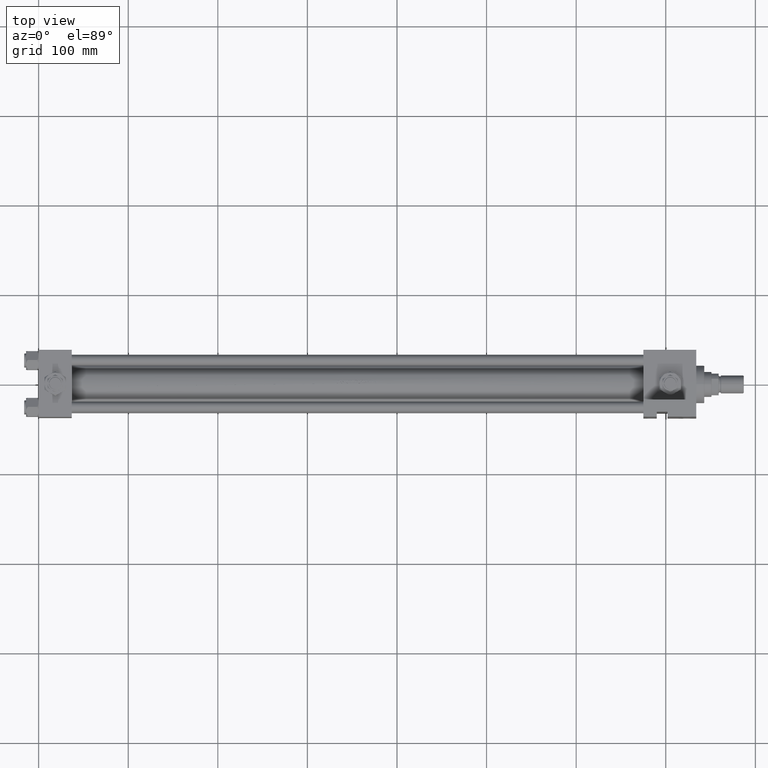
[diagram: clean part render]
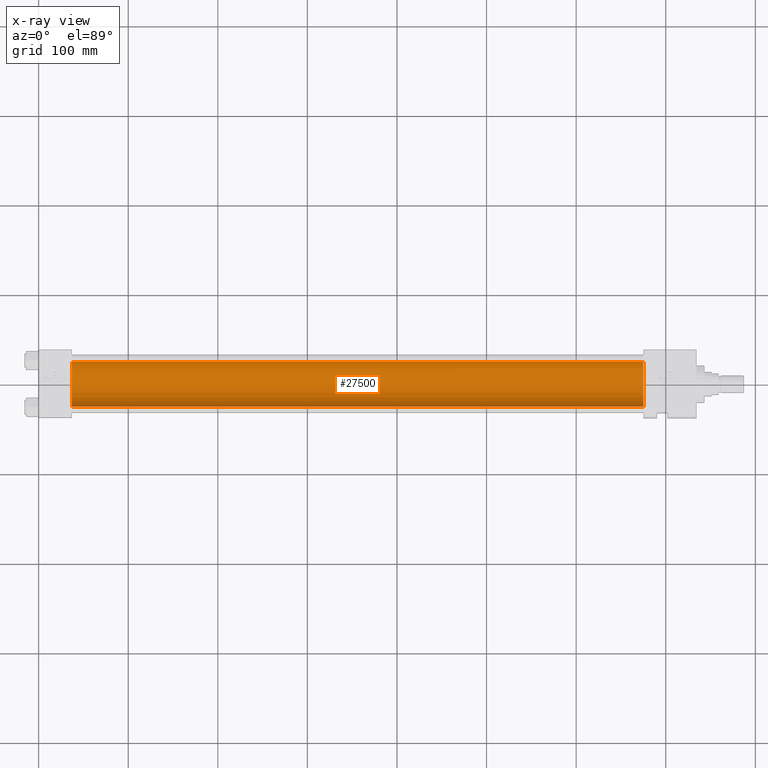
[diagram: x-ray — body ghosted, one internal face saturated and labeled with its STEP entity id]
A machine part, top view, then the same camera in x-ray: the body is ghosted and one INTERNAL B-rep face — a face not visible from any outside direction — is saturated and labeled: STEP entity #27500.
In plain terms, the highlighted cylindrical surface (edge-blend (fillet) strip) has radius 25 mm, axis along (-1, -0, 0).
Its self-contained STEP definition (entity closure, byte-faithful):
#1944 = CIRCLE ( 'NONE', #13288, 25.00000000000000000 ) ;
#3555 = CARTESIAN_POINT ( 'NONE',  ( 37.00000000000000000, 6.123233995736772199E-17, -0.5000000000000004441 ) ) ;
#3609 = EDGE_LOOP ( 'NONE', ( #20262, #24189, #48394, #37879 ) ) ;
#4236 = VERTEX_POINT ( 'NONE', #19249 ) ;
#4852 = DIRECTION ( 'NONE',  ( -1.000000000000000000, -0.000000000000000000, -0.000000000000000000 ) ) ;
#5935 = VECTOR ( 'NONE', #36182, 1000.000000000000000 ) ;
#6159 = VECTOR ( 'NONE', #11584, 1000.000000000000000 ) ;
#7550 = VERTEX_POINT ( 'NONE', #31599 ) ;
#9238 = CARTESIAN_POINT ( 'NONE',  ( 37.00000000000000000, 3.122849337825750617E-15, -25.50000000000000355 ) ) ;
#11584 = DIRECTION ( 'NONE',  ( -1.000000000000000000, -0.000000000000000000, -0.000000000000000000 ) ) ;
#11986 = CYLINDRICAL_SURFACE ( 'NONE', #13807, 25.00000000000000000 ) ;
#12750 = EDGE_CURVE ( 'NONE', #42997, #7550, #30835, .T. ) ;
#13288 = AXIS2_PLACEMENT_3D ( 'NONE', #3555, #42348, #38285 ) ;
#13807 = AXIS2_PLACEMENT_3D ( 'NONE', #24126, #4852, #16040 ) ;
#15846 = CARTESIAN_POINT ( 'NONE',  ( 675.0000000000000000, 6.123233995736772199E-17, 24.50000000000000000 ) ) ;
#16040 = DIRECTION ( 'NONE',  ( 0.000000000000000000, 0.000000000000000000, 1.000000000000000000 ) ) ;
#19249 = CARTESIAN_POINT ( 'NONE',  ( 675.0000000000000000, 3.122849337825750617E-15, -25.50000000000000355 ) ) ;
#20262 = ORIENTED_EDGE ( 'NONE', *, *, #33673, .F. ) ;
#23302 = VERTEX_POINT ( 'NONE', #9238 ) ;
#24106 = EDGE_CURVE ( 'NONE', #4236, #42997, #36489, .T. ) ;
#24126 = CARTESIAN_POINT ( 'NONE',  ( 675.0000000000000000, 6.123233995736772199E-17, -0.5000000000000004441 ) ) ;
#24189 = ORIENTED_EDGE ( 'NONE', *, *, #24106, .T. ) ;
#27071 = CARTESIAN_POINT ( 'NONE',  ( 675.0000000000000000, 6.123233995736772199E-17, -0.5000000000000004441 ) ) ;
#27500 = ADVANCED_FACE ( 'NONE', ( #43140 ), #11986, .F. ) ;
#28326 = CARTESIAN_POINT ( 'NONE',  ( 675.0000000000000000, 3.122849337825750617E-15, -25.50000000000000355 ) ) ;
#30835 = LINE ( 'NONE', #46306, #6159 ) ;
#31599 = CARTESIAN_POINT ( 'NONE',  ( 37.00000000000000000, 6.123233995736772199E-17, 24.50000000000000000 ) ) ;
#32381 = LINE ( 'NONE', #28326, #5935 ) ;
#33673 = EDGE_CURVE ( 'NONE', #4236, #23302, #32381, .T. ) ;
#34424 = DIRECTION ( 'NONE',  ( 0.000000000000000000, 0.000000000000000000, -1.000000000000000000 ) ) ;
#35928 = EDGE_CURVE ( 'NONE', #23302, #7550, #1944, .T. ) ;
#36182 = DIRECTION ( 'NONE',  ( -1.000000000000000000, -0.000000000000000000, -0.000000000000000000 ) ) ;
#36489 = CIRCLE ( 'NONE', #48672, 25.00000000000000000 ) ;
#37879 = ORIENTED_EDGE ( 'NONE', *, *, #35928, .F. ) ;
#38285 = DIRECTION ( 'NONE',  ( 0.000000000000000000, 0.000000000000000000, -1.000000000000000000 ) ) ;
#42348 = DIRECTION ( 'NONE',  ( 1.000000000000000000, 0.000000000000000000, 0.000000000000000000 ) ) ;
#42544 = DIRECTION ( 'NONE',  ( 1.000000000000000000, 0.000000000000000000, 0.000000000000000000 ) ) ;
#42997 = VERTEX_POINT ( 'NONE', #15846 ) ;
#43140 = FACE_OUTER_BOUND ( 'NONE', #3609, .T. ) ;
#46306 = CARTESIAN_POINT ( 'NONE',  ( 675.0000000000000000, 6.123233995736772199E-17, 24.50000000000000000 ) ) ;
#48394 = ORIENTED_EDGE ( 'NONE', *, *, #12750, .T. ) ;
#48672 = AXIS2_PLACEMENT_3D ( 'NONE', #27071, #42544, #34424 ) ;